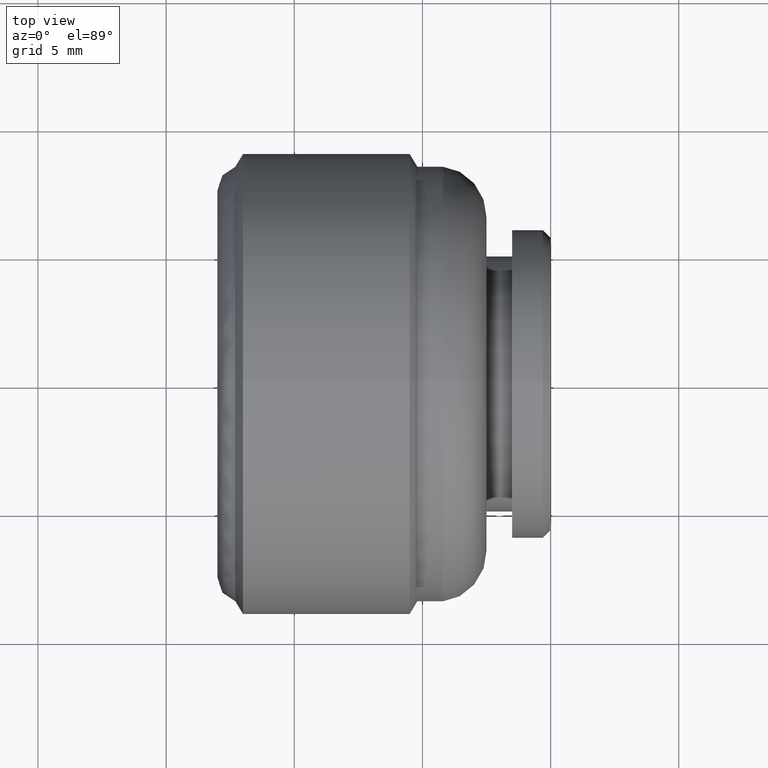
[diagram: clean part render]
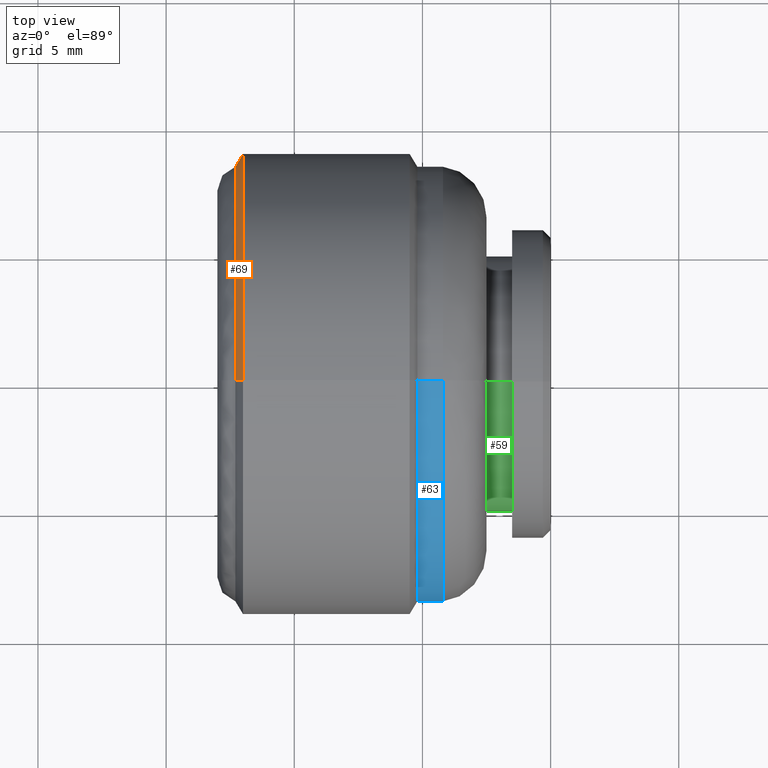
[diagram: same view with three faces highlighted in distinct colors, each labeled with its STEP entity id]
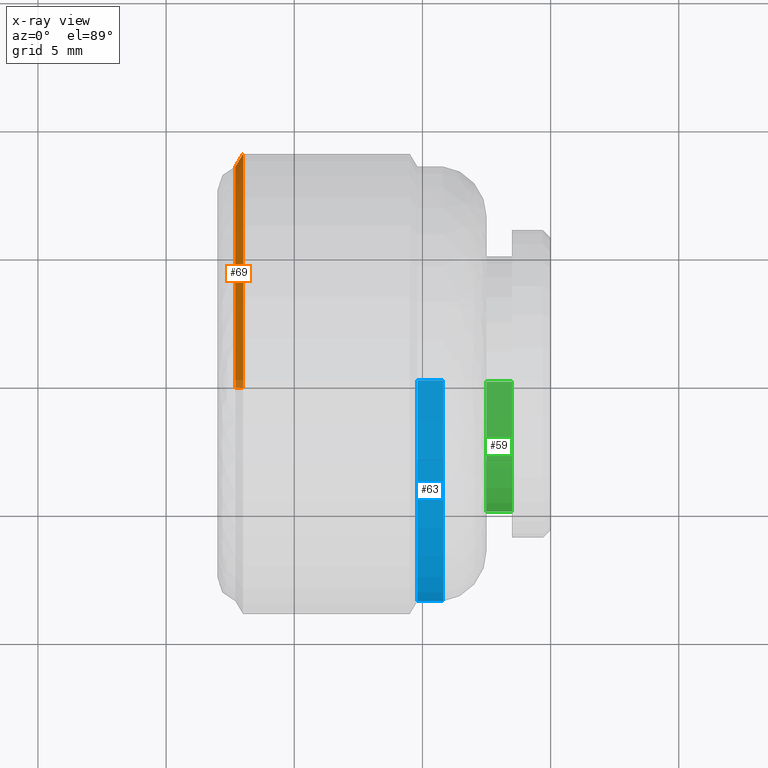
[diagram: x-ray of the same camera — body ghosted, the three highlighted faces saturated]
A machine part, top view with three faces highlighted in distinct colors.
The next image is the same camera in x-ray (body ghosted, the three faces saturated) — at least one of them is partly hidden behind the body in this view.
Their STEP definitions:

[orange] entity #69 — the highlighted face is a freeform B-spline surface patch.
#69=ADVANCED_FACE('',(#366),#365,.T.);
#365=( BOUNDED_SURFACE() B_SPLINE_SURFACE( 2,1,((#651,#652),(#653,#654),(#655,#656),(#657,#658),(#659,#660)), .UNSPECIFIED.,.F.,.F.,.F.) B_SPLINE_SURFACE_WITH_KNOTS((3,2,3),(2,2),(0.00000000000E+00,5.00000000000E-01,1.00000000000E+00),(0.00000000000E+00,1.00000000000E+00), .UNSPECIFIED. ) GEOMETRIC_REPRESENTATION_ITEM() RATIONAL_B_SPLINE_SURFACE(((1.00000000000E+00,1.00000000000E+00),(7.07106781187E-01,7.07106781187E-01),(1.00000000000E+00,1.00000000000E+00),(7.07106781187E-01,7.07106781187E-01),(1.00000000000E+00,1.00000000000E+00))) REPRESENTATION_ITEM('') SURFACE() );
#366=FACE_OUTER_BOUND('',#661,.T.);
#651=CARTESIAN_POINT('',(-1.74000000000E+01,0.00000000000E+00,0.00000000000E+00));
#652=CARTESIAN_POINT('',(-9.76324676319E+00,1.55872090122E-15,-1.27279220614E+01));
#653=CARTESIAN_POINT('',(-1.74000000000E+01,0.00000000000E+00,0.00000000000E+00));
#654=CARTESIAN_POINT('',(-9.76324676319E+00,1.27279220614E+01,-1.27279220614E+01));
#655=CARTESIAN_POINT('',(-1.74000000000E+01,0.00000000000E+00,0.00000000000E+00));
#656=CARTESIAN_POINT('',(-9.76324676319E+00,1.27279220614E+01,7.79360450612E-16));
#657=CARTESIAN_POINT('',(-1.74000000000E+01,0.00000000000E+00,0.00000000000E+00));
#658=CARTESIAN_POINT('',(-9.76324676319E+00,1.27279220614E+01,1.27279220614E+01));
#659=CARTESIAN_POINT('',(-1.74000000000E+01,0.00000000000E+00,0.00000000000E+00));
#660=CARTESIAN_POINT('',(-9.76324676319E+00,0.00000000000E+00,1.27279220614E+01));
#661=EDGE_LOOP('',(#826,#827,#828,#829));
#826=ORIENTED_EDGE('',*,*,#897,.F.);
#827=ORIENTED_EDGE('',*,*,#894,.T.);
#828=ORIENTED_EDGE('',*,*,#891,.T.);
#829=ORIENTED_EDGE('',*,*,#896,.F.);
#891=EDGE_CURVE('',#1250,#1243,#1251,.T.);
#894=EDGE_CURVE('',#1269,#1250,#1270,.T.);
#896=EDGE_CURVE('',#1276,#1243,#1283,.T.);
#897=EDGE_CURVE('',#1269,#1276,#1289,.T.);
#1243=VERTEX_POINT('',#1506);
#1250=VERTEX_POINT('',#1509);
#1251=CIRCLE('',#1513,9.00000000000E+00);
#1269=VERTEX_POINT('',#1520);
#1270=(BOUNDED_CURVE() B_SPLINE_CURVE(1,(#1521,#1522),.UNSPECIFIED.,.F.,.F.) B_SPLINE_CURVE_WITH_KNOTS((2,2),(6.67826870083E-01,7.07106779919E-01),.UNSPECIFIED.) CURVE() GEOMETRIC_REPRESENTATION_ITEM() RATIONAL_B_SPLINE_CURVE((1.00000000000E+00,1.00000000000E+00)) REPRESENTATION_ITEM('') );
#1276=VERTEX_POINT('',#1523);
#1283=(BOUNDED_CURVE() B_SPLINE_CURVE(1,(#1528,#1529),.UNSPECIFIED.,.F.,.F.) B_SPLINE_CURVE_WITH_KNOTS((2,2),(6.67826731142E-01,7.07106780095E-01),.UNSPECIFIED.) CURVE() GEOMETRIC_REPRESENTATION_ITEM() RATIONAL_B_SPLINE_CURVE((7.50000000000E-01,7.50000000000E-01)) REPRESENTATION_ITEM('') );
#1289=CIRCLE('',#1533,8.50004831815E+00);
#1506=CARTESIAN_POINT('',(-1.20000000000E+01,5.92118946467E-16,-9.00000000000E+00));
#1509=CARTESIAN_POINT('',(-1.20000000000E+01,0.00000000000E+00,9.00000000000E+00));
#1510=CARTESIAN_POINT('',(-1.20000000000E+01,0.00000000000E+00,0.00000000000E+00));
#1511=DIRECTION('',(-1.00000000000E+00,0.00000000000E+00,0.00000000000E+00));
#1512=DIRECTION('',(0.00000000000E+00,-1.22460635382E-16,1.00000000000E+00));
#1513=AXIS2_PLACEMENT_3D('',#1510,#1511,#1512);
#1520=CARTESIAN_POINT('',(-1.22999710091E+01,0.00000000000E+00,8.50004831815E+00));
#1521=CARTESIAN_POINT('',(-1.22999709883E+01,-2.08184264415E-15,8.50004835290E+00));
#1522=CARTESIAN_POINT('',(-1.20000000097E+01,-2.20429143293E-15,8.99999998386E+00));
#1523=CARTESIAN_POINT('',(-1.22999710091E+01,5.92118946467E-16,-8.50004831815E+00));
#1528=CARTESIAN_POINT('',(-1.22999720493E+01,2.37259716280E-15,-8.50004658446E+00));
#1529=CARTESIAN_POINT('',(-1.20000000083E+01,2.51214793001E-15,-8.99999998610E+00));
#1530=CARTESIAN_POINT('',(-1.22999710091E+01,0.00000000000E+00,0.00000000000E+00));
#1531=DIRECTION('',(-1.00000000000E+00,0.00000000000E+00,0.00000000000E+00));
#1532=DIRECTION('',(0.00000000000E+00,-1.22460635382E-16,1.00000000000E+00));
#1533=AXIS2_PLACEMENT_3D('',#1530,#1531,#1532);

[blue] entity #63 — the highlighted cylindrical surface (partial cylindrical patch) has radius 8.5 mm, axis along (1, -0, -0).
#63=ADVANCED_FACE('',(#306),#305,.T.);
#305=CYLINDRICAL_SURFACE('',#606,8.50000000000E+00);
#306=FACE_OUTER_BOUND('',#607,.T.);
#603=CARTESIAN_POINT('',(0.00000000000E+00,0.00000000000E+00,0.00000000000E+00));
#604=DIRECTION('',(1.00000000000E+00,-0.00000000000E+00,-0.00000000000E+00));
#605=DIRECTION('',(0.00000000000E+00,0.00000000000E+00,-1.00000000000E+00));
#606=AXIS2_PLACEMENT_3D('',#603,#604,#605);
#607=EDGE_LOOP('',(#802,#803,#804,#805));
#802=ORIENTED_EDGE('',*,*,#885,.F.);
#803=ORIENTED_EDGE('',*,*,#882,.T.);
#804=ORIENTED_EDGE('',*,*,#878,.T.);
#805=ORIENTED_EDGE('',*,*,#884,.F.);
#878=EDGE_CURVE('',#1165,#1166,#1167,.T.);
#882=EDGE_CURVE('',#1191,#1165,#1192,.T.);
#884=EDGE_CURVE('',#1198,#1166,#1205,.T.);
#885=EDGE_CURVE('',#1191,#1198,#1211,.T.);
#1165=VERTEX_POINT('',#1460);
#1166=VERTEX_POINT('',#1461);
#1167=CIRCLE('',#1465,8.50000000000E+00);
#1191=VERTEX_POINT('',#1478);
#1192=(BOUNDED_CURVE() B_SPLINE_CURVE(1,(#1479,#1480),.UNSPECIFIED.,.F.,.F.) B_SPLINE_CURVE_WITH_KNOTS((2,2),(8.33332935974E-02,9.16666633252E-01),.UNSPECIFIED.) CURVE() GEOMETRIC_REPRESENTATION_ITEM() RATIONAL_B_SPLINE_CURVE((1.00000000000E+00,1.00000000000E+00)) REPRESENTATION_ITEM('') );
#1198=VERTEX_POINT('',#1481);
#1205=(BOUNDED_CURVE() B_SPLINE_CURVE(1,(#1486,#1487),.UNSPECIFIED.,.F.,.F.) B_SPLINE_CURVE_WITH_KNOTS((2,2),(8.33333333333E-02,9.16666666667E-01),.UNSPECIFIED.) CURVE() GEOMETRIC_REPRESENTATION_ITEM() RATIONAL_B_SPLINE_CURVE((7.50000000000E-01,7.50000000000E-01)) REPRESENTATION_ITEM('') );
#1211=CIRCLE('',#1491,8.50000000000E+00);
#1460=CARTESIAN_POINT('',(-4.19952585802E+00,8.88178419700E-16,-8.50000000000E+00));
#1461=CARTESIAN_POINT('',(-4.19952585802E+00,0.00000000000E+00,8.50000000000E+00));
#1462=CARTESIAN_POINT('',(-4.19952585802E+00,0.00000000000E+00,0.00000000000E+00));
#1463=DIRECTION('',(-1.00000000000E+00,0.00000000000E+00,0.00000000000E+00));
#1464=DIRECTION('',(0.00000000000E+00,-1.22460635382E-16,1.00000000000E+00));
#1465=AXIS2_PLACEMENT_3D('',#1462,#1463,#1464);
#1478=CARTESIAN_POINT('',(-5.20000000000E+00,8.88178419700E-16,-8.50000000000E+00));
#1479=CARTESIAN_POINT('',(-5.20000004771E+00,0.00000000000E+00,-8.50000000000E+00));
#1480=CARTESIAN_POINT('',(-4.19952589813E+00,0.00000000000E+00,-8.50000000000E+00));
#1481=CARTESIAN_POINT('',(-5.20000000000E+00,0.00000000000E+00,8.50000000000E+00));
#1486=CARTESIAN_POINT('',(-5.20000000000E+00,-2.96059473233E-16,8.50000000000E+00));
#1487=CARTESIAN_POINT('',(-4.19952585802E+00,-2.96059473233E-16,8.50000000000E+00));
#1488=CARTESIAN_POINT('',(-5.20000000000E+00,0.00000000000E+00,0.00000000000E+00));
#1489=DIRECTION('',(-1.00000000000E+00,0.00000000000E+00,0.00000000000E+00));
#1490=DIRECTION('',(0.00000000000E+00,-1.22460635382E-16,1.00000000000E+00));
#1491=AXIS2_PLACEMENT_3D('',#1488,#1489,#1490);

[green] entity #59 — the highlighted cylindrical surface (partial cylindrical patch) has radius 5 mm, axis along (1, -0, -0).
#59=ADVANCED_FACE('',(#266),#265,.T.);
#265=CYLINDRICAL_SURFACE('',#544,5.00000000000E+00);
#266=FACE_OUTER_BOUND('',#545,.T.);
#541=CARTESIAN_POINT('',(0.00000000000E+00,0.00000000000E+00,0.00000000000E+00));
#542=DIRECTION('',(1.00000000000E+00,-0.00000000000E+00,-0.00000000000E+00));
#543=DIRECTION('',(-0.00000000000E+00,-0.00000000000E+00,-1.00000000000E+00));
#544=AXIS2_PLACEMENT_3D('',#541,#542,#543);
#545=EDGE_LOOP('',(#786,#787,#788,#789));
#786=ORIENTED_EDGE('',*,*,#851,.F.);
#787=ORIENTED_EDGE('',*,*,#876,.T.);
#788=ORIENTED_EDGE('',*,*,#846,.T.);
#789=ORIENTED_EDGE('',*,*,#877,.F.);
#846=EDGE_CURVE('',#956,#957,#958,.T.);
#851=EDGE_CURVE('',#985,#984,#992,.T.);
#876=EDGE_CURVE('',#985,#956,#1153,.T.);
#877=EDGE_CURVE('',#984,#957,#1159,.T.);
#956=VERTEX_POINT('',#1347);
#957=VERTEX_POINT('',#1348);
#958=CIRCLE('',#1352,5.00000000000E+00);
#984=VERTEX_POINT('',#1367);
#985=VERTEX_POINT('',#1368);
#992=CIRCLE('',#1376,5.00000000000E+00);
#1153=(BOUNDED_CURVE() B_SPLINE_CURVE(1,(#1456,#1457),.UNSPECIFIED.,.F.,.F.) B_SPLINE_CURVE_WITH_KNOTS((2,2),(8.33332935974E-02,9.16666633252E-01),.UNSPECIFIED.) CURVE() GEOMETRIC_REPRESENTATION_ITEM() RATIONAL_B_SPLINE_CURVE((1.00000000000E+00,1.00000000000E+00)) REPRESENTATION_ITEM('') );
#1159=(BOUNDED_CURVE() B_SPLINE_CURVE(1,(#1458,#1459),.UNSPECIFIED.,.F.,.F.) B_SPLINE_CURVE_WITH_KNOTS((2,2),(8.33333333333E-02,9.16666666667E-01),.UNSPECIFIED.) CURVE() GEOMETRIC_REPRESENTATION_ITEM() RATIONAL_B_SPLINE_CURVE((7.50000000000E-01,7.50000000000E-01)) REPRESENTATION_ITEM('') );
#1347=CARTESIAN_POINT('',(-1.50000000000E+00,2.96059473233E-16,-5.00000000000E+00));
#1348=CARTESIAN_POINT('',(-1.50000000000E+00,0.00000000000E+00,5.00000000000E+00));
#1349=CARTESIAN_POINT('',(-1.50000000000E+00,0.00000000000E+00,0.00000000000E+00));
#1350=DIRECTION('',(-1.00000000000E+00,0.00000000000E+00,0.00000000000E+00));
#1351=DIRECTION('',(0.00000000000E+00,-1.22460635382E-16,1.00000000000E+00));
#1352=AXIS2_PLACEMENT_3D('',#1349,#1350,#1351);
#1367=CARTESIAN_POINT('',(-2.50000000000E+00,0.00000000000E+00,5.00000000000E+00));
#1368=CARTESIAN_POINT('',(-2.50000000000E+00,2.96059473233E-16,-5.00000000000E+00));
#1373=CARTESIAN_POINT('',(-2.50000000000E+00,0.00000000000E+00,0.00000000000E+00));
#1374=DIRECTION('',(-1.00000000000E+00,0.00000000000E+00,0.00000000000E+00));
#1375=DIRECTION('',(0.00000000000E+00,-1.22460635382E-16,1.00000000000E+00));
#1376=AXIS2_PLACEMENT_3D('',#1373,#1374,#1375);
#1456=CARTESIAN_POINT('',(-2.50000004768E+00,0.00000000000E+00,-5.00000000000E+00));
#1457=CARTESIAN_POINT('',(-1.50000004010E+00,0.00000000000E+00,-5.00000000000E+00));
#1458=CARTESIAN_POINT('',(-2.50000000000E+00,-2.96059473233E-16,5.00000000000E+00));
#1459=CARTESIAN_POINT('',(-1.50000000000E+00,-2.96059473233E-16,5.00000000000E+00));